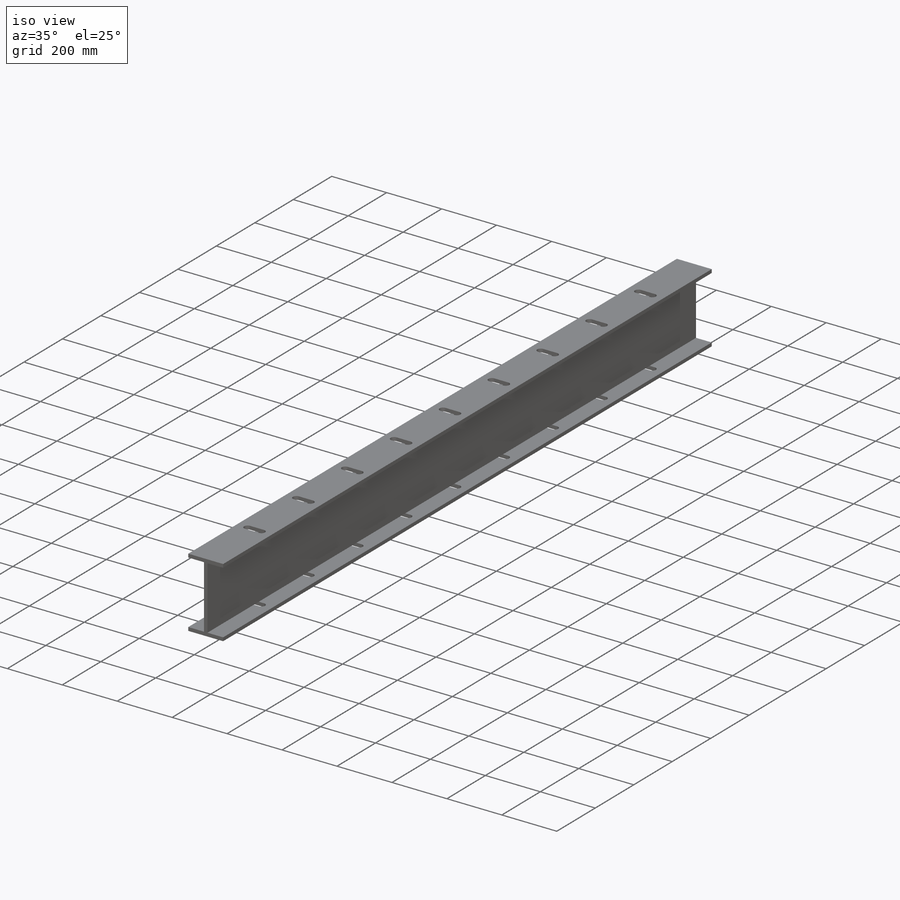
[diagram: iso view]
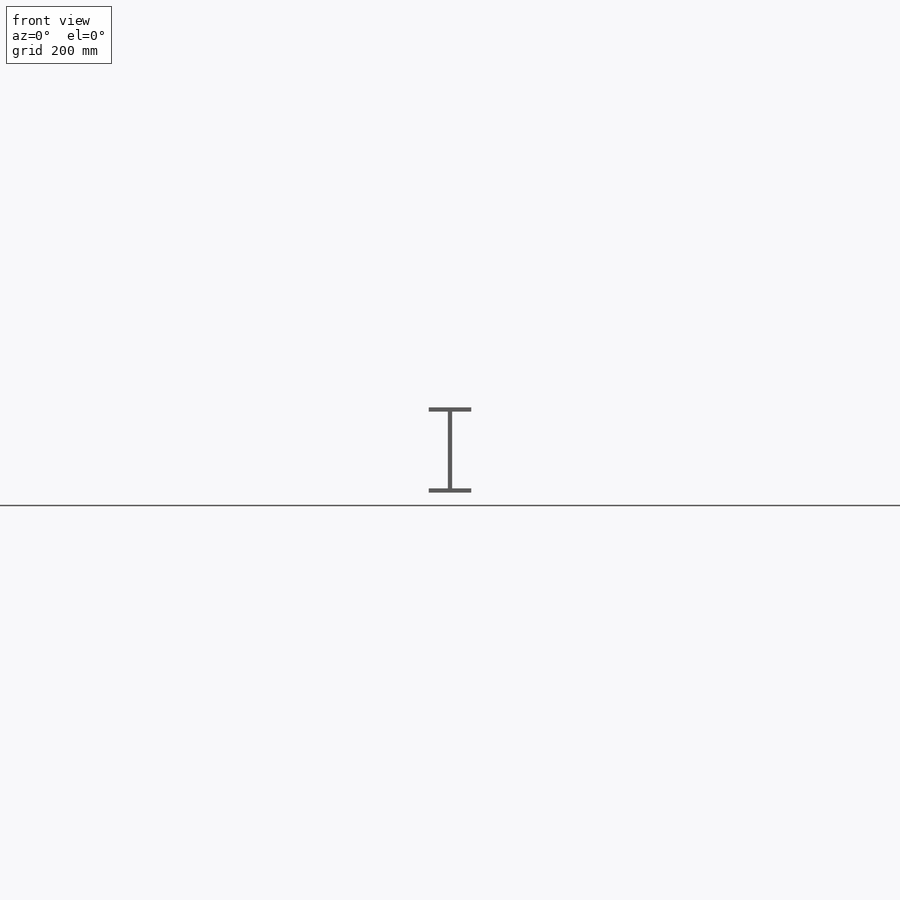
[diagram: front view]
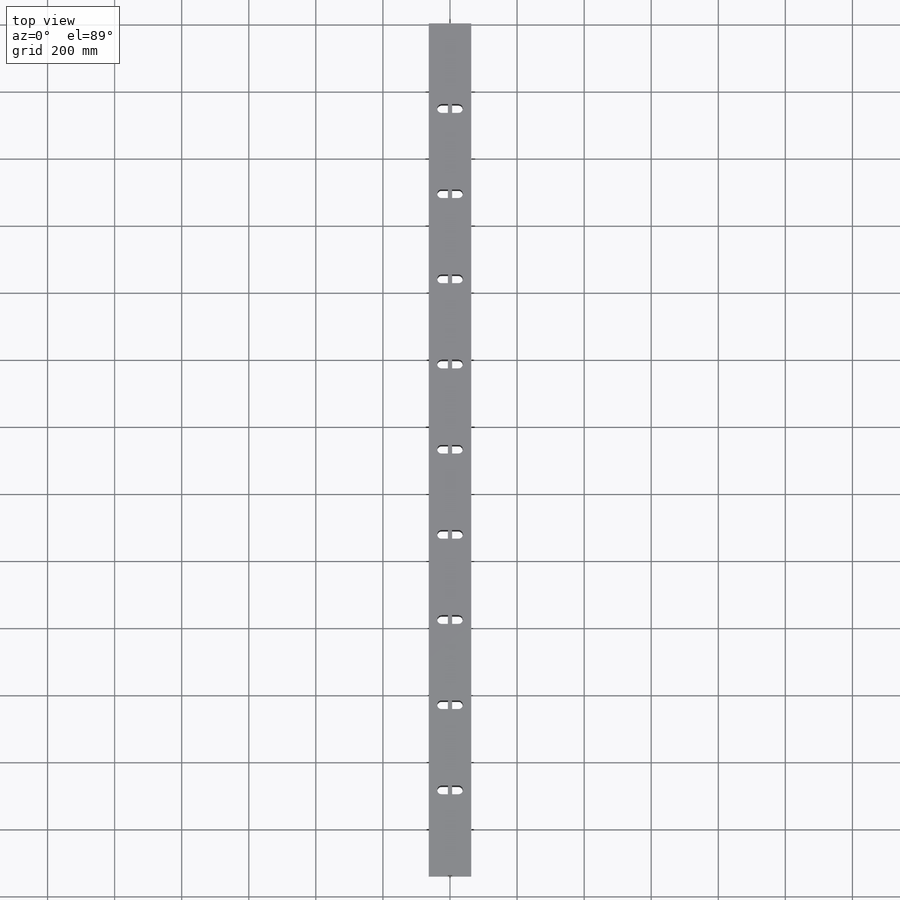
[diagram: top view]
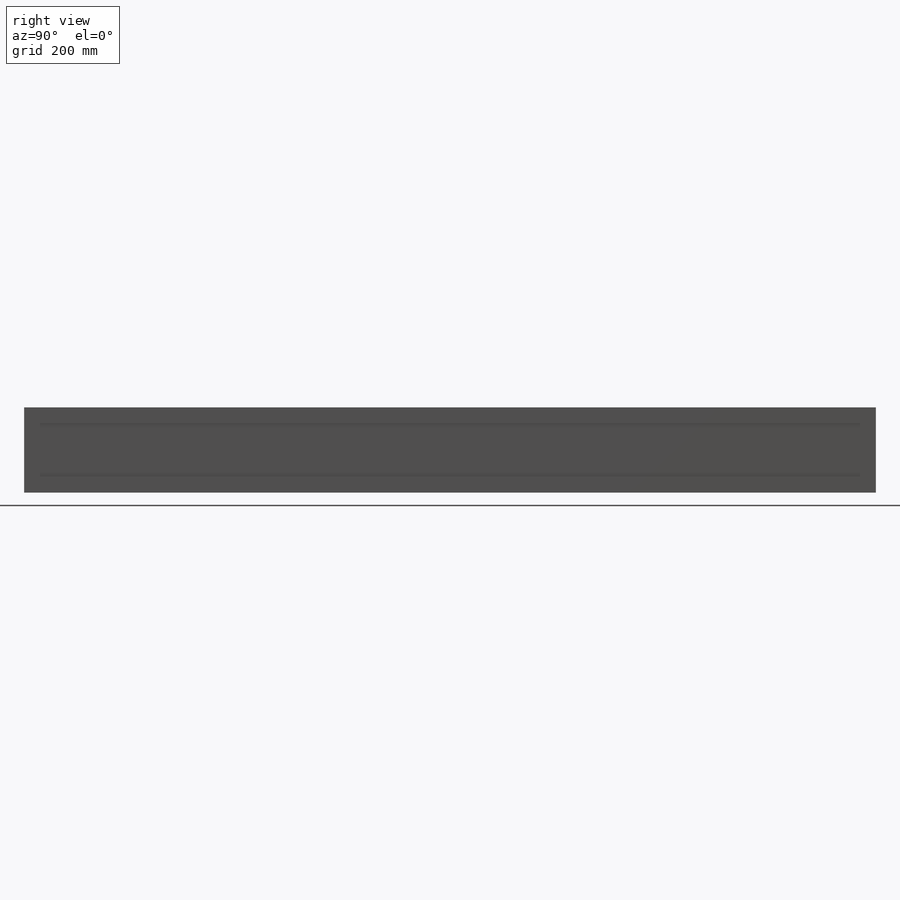
[diagram: right view]
SOLIDWORKS PART (.sldprt)
format: sldprt  version: not decoded by parser v0  size: 358,400 bytes
history: native  units: mm
features: sketch x4, cut_extrude x3, pattern_linear x2, material x1, extrude x1 (+16 scaffold rows collapsed)
feature tree (27):
  scaffold x16  (default folders/planes/origin — collapsed)
  material  "ASTM A36 Steel"
  sketch  "Sketch1"  dims[c1.D1=127.0mm c1.D2=12.7mm c1.D3=12.7mm c1.D4=12.7mm c1.D5=12.7mm c1.D6=12.7mm c1.D7=127.0mm c1.D8=254.0mm c1.D9=127.0mm c1.D10=~139.345632mm c2.D10=90.0deg c3.D10=63.5mm c3.D11=6.35mm]
  extrude  "Boss-Extrude1"  Depth=2540mm
  sketch  "Sketch2"  dims[D1=127.0mm D2=254.0mm D3=9.0]
  cut_extrude  "Cut-Extrude1"  [1 undecoded]
  sketch  "Sketch3"  dims[D1=12.7mm D2=12.7mm D3=254.0mm D4=254.0mm D5=25.4mm D6=25.4mm]
  cut_extrude  "Cut-Extrude2"  [1 undecoded]
  pattern_linear  "LPattern1"  Count1=9 Count2=1 Spacing1=254mm Spacing2=2.54mm
  sketch  "Sketch4"  dims[D1=12.7mm D2=254.0mm D3=38.1mm D4=38.1mm D5=50.8mm]
  cut_extrude  "Cut-Extrude3"  Depth=12.7mm
  pattern_linear  "LPattern2"  Count1=9 Count2=2 Spacing1=254mm Spacing2=241.3mm
decode coverage: 8 of 10 modeling features carry decoded parameters
note: ~ marks probable driven/reference dimensions
note: 2 parameter values undecoded
note: suppression state not decoded; provenance and decode notes live in map.json
